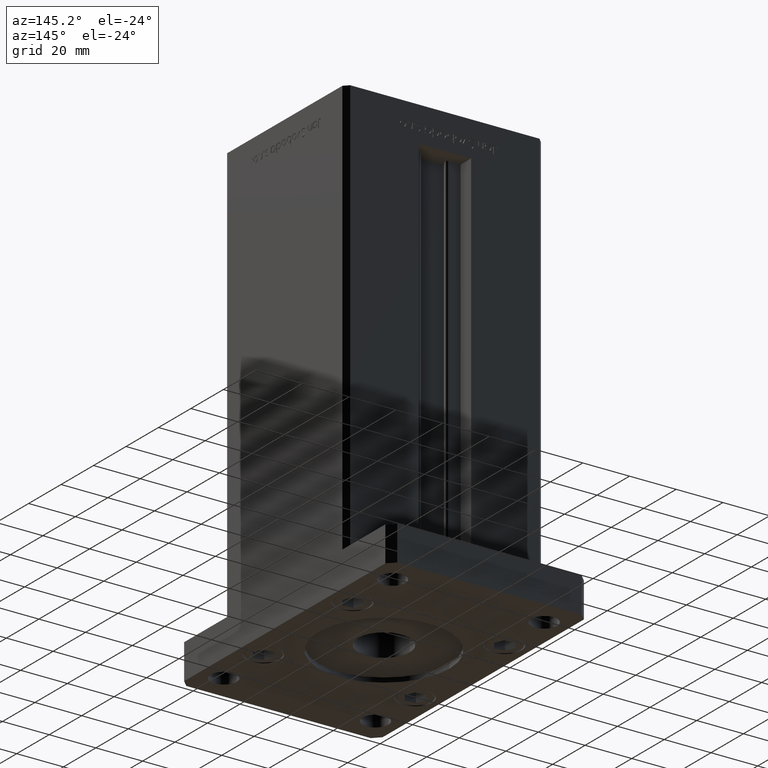
[diagram: clean part render]
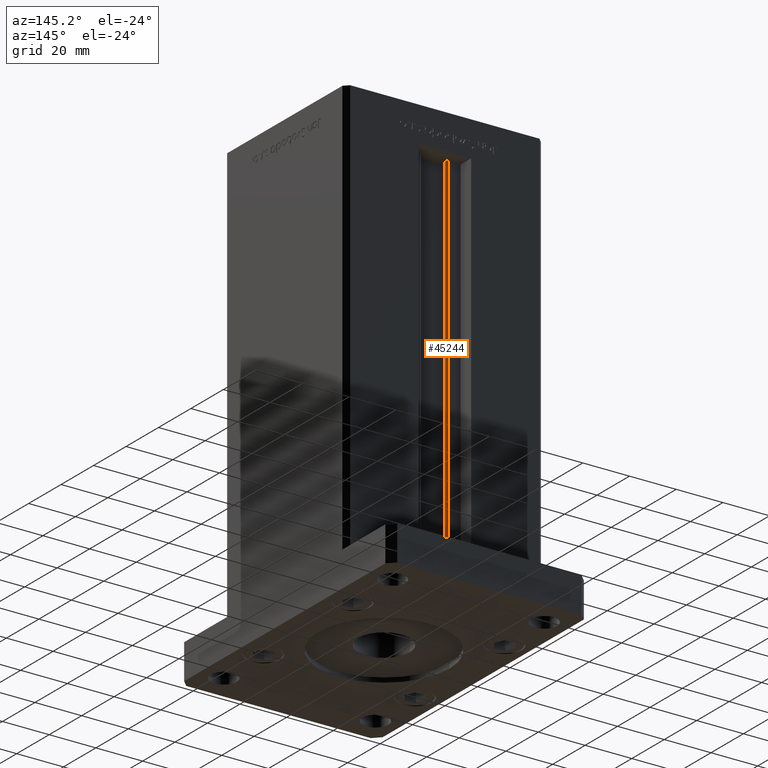
[diagram: same view with one face highlighted and labeled with its STEP entity id]
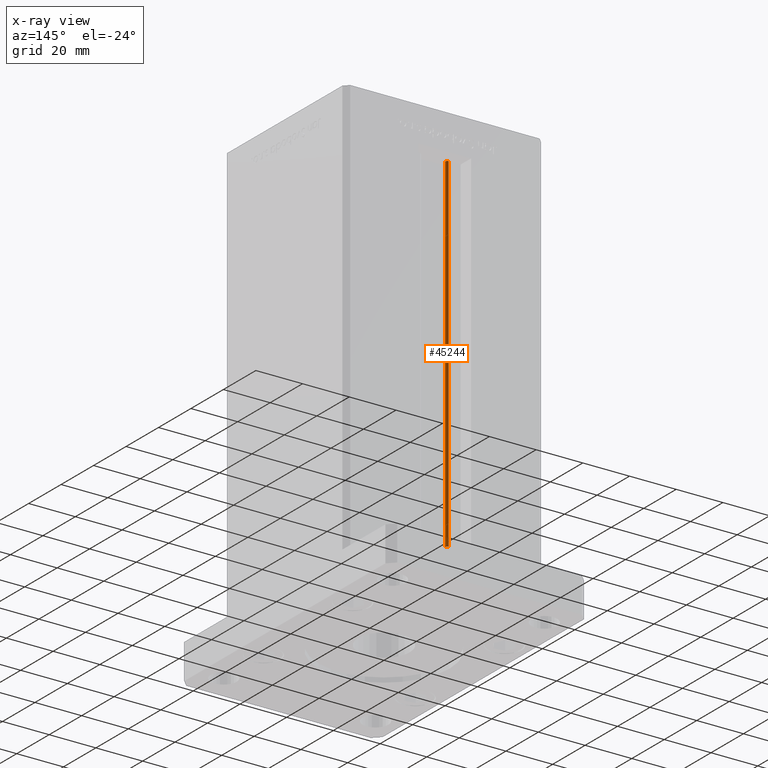
[diagram: x-ray of the same camera — body ghosted, the highlighted face saturated]
A machine part, auxiliary view. The second image highlights one B-rep face of the part: STEP entity #45244.
The next image is the same camera in x-ray: the body ghosted, the highlighted face saturated — about 2% of this face is hidden behind the body in this view.
In plain terms, the highlighted cylindrical surface (edge-blend (fillet) strip) has radius 0.9333 mm, axis along (0, 0, 1).
Its self-contained STEP definition (entity closure, byte-faithful):
#1209 = DIRECTION ( 'NONE',  ( -0.000000000000000000, -0.000000000000000000, 1.000000000000000000 ) ) ;
#2230 = ORIENTED_EDGE ( 'NONE', *, *, #32947, .F. ) ;
#2873 = LINE ( 'NONE', #48774, #16495 ) ;
#5261 = FACE_OUTER_BOUND ( 'NONE', #22017, .T. ) ;
#5758 = CARTESIAN_POINT ( 'NONE',  ( -6.183333333333999704, 30.06666666666599141, 148.5000000000000000 ) ) ;
#5974 = AXIS2_PLACEMENT_3D ( 'NONE', #51101, #30131, #30411 ) ;
#7660 = CARTESIAN_POINT ( 'NONE',  ( -6.183333333333999704, 30.99999999999999289, 0.000000000000000000 ) ) ;
#8704 = EDGE_CURVE ( 'NONE', #26417, #23564, #2873, .T. ) ;
#9560 = VERTEX_POINT ( 'NONE', #46151 ) ;
#10994 = DIRECTION ( 'NONE',  ( -0.000000000000000000, -0.000000000000000000, 1.000000000000000000 ) ) ;
#11208 = ORIENTED_EDGE ( 'NONE', *, *, #8704, .T. ) ;
#15219 = CARTESIAN_POINT ( 'NONE',  ( -5.249999999999997335, 30.06666666666599141, 0.000000000000000000 ) ) ;
#16448 = ORIENTED_EDGE ( 'NONE', *, *, #46592, .T. ) ;
#16495 = VECTOR ( 'NONE', #10994, 1000.000000000000000 ) ;
#21947 = AXIS2_PLACEMENT_3D ( 'NONE', #47098, #1209, #43295 ) ;
#22017 = EDGE_LOOP ( 'NONE', ( #50098, #2230, #11208, #16448 ) ) ;
#23564 = VERTEX_POINT ( 'NONE', #38193 ) ;
#26417 = VERTEX_POINT ( 'NONE', #7660 ) ;
#30131 = DIRECTION ( 'NONE',  ( -0.000000000000000000, -0.000000000000000000, -1.000000000000000000 ) ) ;
#30220 = EDGE_CURVE ( 'NONE', #50457, #9560, #35565, .T. ) ;
#30411 = DIRECTION ( 'NONE',  ( 1.000000000000000000, 0.000000000000000000, 0.000000000000000000 ) ) ;
#30486 = CYLINDRICAL_SURFACE ( 'NONE', #21947, 0.9333333333340015914 ) ;
#32947 = EDGE_CURVE ( 'NONE', #26417, #50457, #45871, .T. ) ;
#35074 = DIRECTION ( 'NONE',  ( 1.000000000000000000, 0.000000000000000000, 0.000000000000000000 ) ) ;
#35565 = LINE ( 'NONE', #15219, #37216 ) ;
#37216 = VECTOR ( 'NONE', #51614, 1000.000000000000000 ) ;
#37790 = CARTESIAN_POINT ( 'NONE',  ( -5.249999999999997335, 30.06666666666599141, 0.000000000000000000 ) ) ;
#38193 = CARTESIAN_POINT ( 'NONE',  ( -6.183333333333999704, 30.99999999999999289, 148.5000000000000000 ) ) ;
#40226 = CIRCLE ( 'NONE', #53255, 0.9333333333340015914 ) ;
#43244 = DIRECTION ( 'NONE',  ( 0.000000000000000000, 0.000000000000000000, -1.000000000000000000 ) ) ;
#43295 = DIRECTION ( 'NONE',  ( 1.000000000000000000, 0.000000000000000000, 0.000000000000000000 ) ) ;
#45244 = ADVANCED_FACE ( 'NONE', ( #5261 ), #30486, .T. ) ;
#45871 = CIRCLE ( 'NONE', #5974, 0.9333333333340015914 ) ;
#46151 = CARTESIAN_POINT ( 'NONE',  ( -5.249999999999997335, 30.06666666666599141, 148.5000000000000000 ) ) ;
#46592 = EDGE_CURVE ( 'NONE', #23564, #9560, #40226, .T. ) ;
#47098 = CARTESIAN_POINT ( 'NONE',  ( -6.183333333333999704, 30.06666666666599141, 0.000000000000000000 ) ) ;
#48774 = CARTESIAN_POINT ( 'NONE',  ( -6.183333333333999704, 30.99999999999999289, 0.000000000000000000 ) ) ;
#50098 = ORIENTED_EDGE ( 'NONE', *, *, #30220, .F. ) ;
#50457 = VERTEX_POINT ( 'NONE', #37790 ) ;
#51101 = CARTESIAN_POINT ( 'NONE',  ( -6.183333333333999704, 30.06666666666599141, 0.000000000000000000 ) ) ;
#51614 = DIRECTION ( 'NONE',  ( -0.000000000000000000, -0.000000000000000000, 1.000000000000000000 ) ) ;
#53255 = AXIS2_PLACEMENT_3D ( 'NONE', #5758, #43244, #35074 ) ;